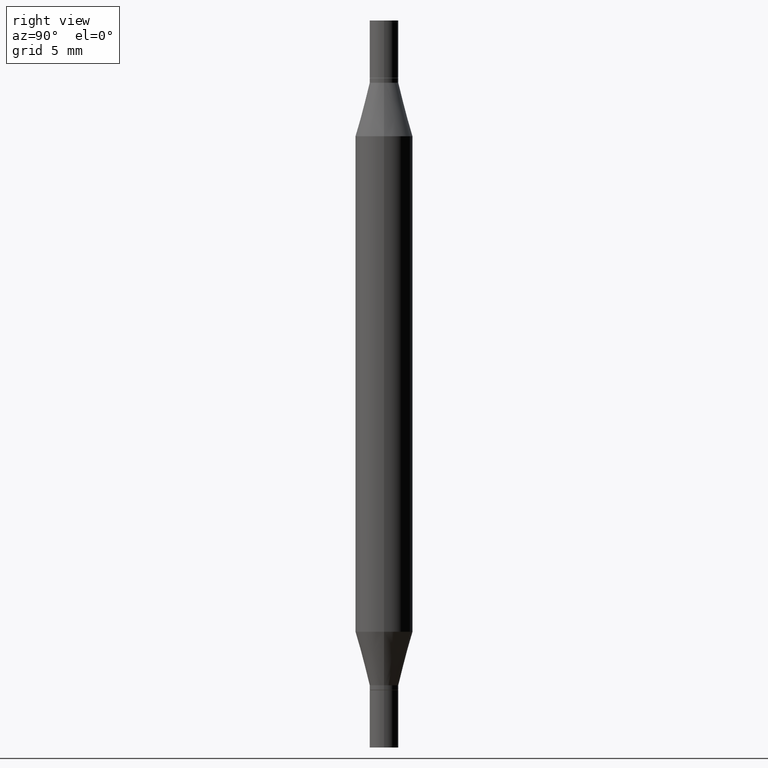
[diagram: clean part render]
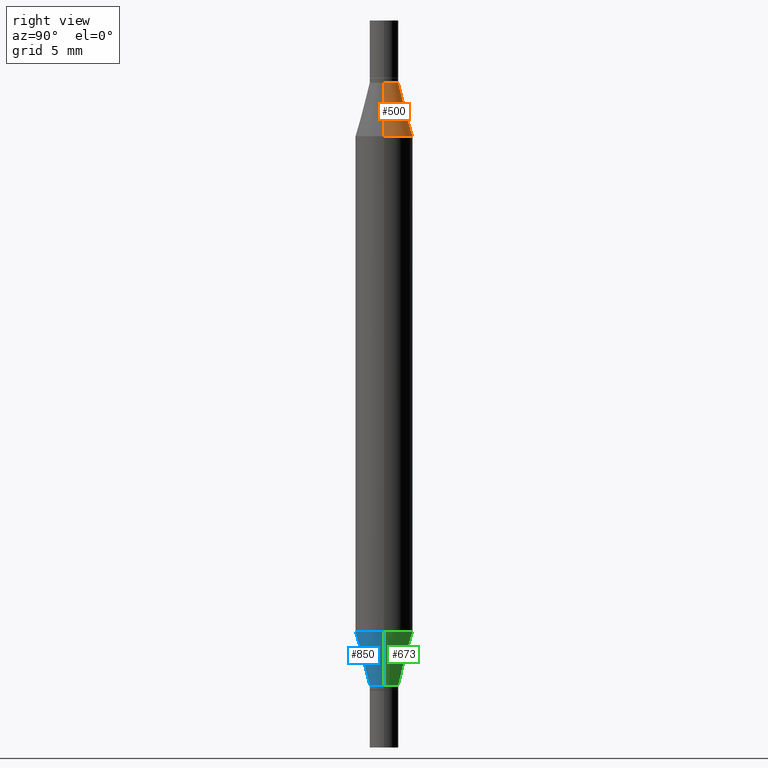
[diagram: same view with three faces highlighted in distinct colors, each labeled with its STEP entity id]
A machine part, right view with three faces highlighted in distinct colors.
Their STEP definitions:

[orange] entity #500 — the highlighted conical surface has half-angle 15 deg.
#31 = CARTESIAN_POINT ( 'NONE',  ( 0.05904999999999999832, -1.243484836231766624E-15, -0.2380954988232820146 ) ) ;
#44 = DIRECTION ( 'NONE',  ( -0.2588190451025213501, -1.597197180879714326E-15, -0.9659258262890682012 ) ) ;
#74 = DIRECTION ( 'NONE',  ( 2.445468806185136597E-29, 3.491805094961124077E-15, 1.000000000000000000 ) ) ;
#75 = VERTEX_POINT ( 'NONE', #653 ) ;
#97 = DIRECTION ( 'NONE',  ( 0.2588190451025213501, -5.180148453816008779E-15, -0.9659258262890682012 ) ) ;
#100 = CIRCLE ( 'NONE', #852, 0.02954999999999991661 ) ;
#165 = LINE ( 'NONE', #710, #436 ) ;
#171 = AXIS2_PLACEMENT_3D ( 'NONE', #889, #74, #353 ) ;
#172 = CARTESIAN_POINT ( 'NONE',  ( -0.02954999999999991661, -2.275696666105042854E-16, -0.1280000000000001137 ) ) ;
#191 = CONICAL_SURFACE ( 'NONE', #292, 0.02954999999999991661, 0.2617993877991500740 ) ;
#199 = EDGE_CURVE ( 'NONE', #772, #932, #734, .T. ) ;
#292 = AXIS2_PLACEMENT_3D ( 'NONE', #338, #715, #871 ) ;
#310 = VERTEX_POINT ( 'NONE', #172 ) ;
#335 = CARTESIAN_POINT ( 'NONE',  ( -0.02954999999999991661, -2.439811505568221169E-16, -0.1280000000000001137 ) ) ;
#338 = CARTESIAN_POINT ( 'NONE',  ( 3.345645873741884627E-29, -4.467088663909703532E-16, -0.1280000000000001137 ) ) ;
#353 = DIRECTION ( 'NONE',  ( 1.000000000000000000, -6.982962677686265133E-15, 0.000000000000000000 ) ) ;
#365 = EDGE_CURVE ( 'NONE', #75, #772, #165, .T. ) ;
#436 = VECTOR ( 'NONE', #97, 39.37007874015747433 ) ;
#480 = ORIENTED_EDGE ( 'NONE', *, *, #199, .T. ) ;
#500 = ADVANCED_FACE ( 'NONE', ( #942 ), #191, .T. ) ;
#563 = DIRECTION ( 'NONE',  ( 2.445468806185136597E-29, 3.491805094961124077E-15, 1.000000000000000000 ) ) ;
#590 = VECTOR ( 'NONE', #44, 39.37007874015747433 ) ;
#598 = ORIENTED_EDGE ( 'NONE', *, *, #365, .T. ) ;
#644 = ORIENTED_EDGE ( 'NONE', *, *, #925, .F. ) ;
#647 = CARTESIAN_POINT ( 'NONE',  ( -0.05904999999999999832, -4.260284833459836245E-16, -0.2380954988232820146 ) ) ;
#653 = CARTESIAN_POINT ( 'NONE',  ( 0.02954999999999991661, -6.530554135165988789E-16, -0.1280000000000001137 ) ) ;
#708 = CARTESIAN_POINT ( 'NONE',  ( 3.345645873741884627E-29, -4.467088663909703532E-16, -0.1280000000000001137 ) ) ;
#710 = CARTESIAN_POINT ( 'NONE',  ( 0.02954999999999991661, -6.530554135165988789E-16, -0.1280000000000001137 ) ) ;
#715 = DIRECTION ( 'NONE',  ( -2.445468806185136597E-29, -3.491805094961124077E-15, -1.000000000000000000 ) ) ;
#734 = CIRCLE ( 'NONE', #171, 0.05904999999999999832 ) ;
#772 = VERTEX_POINT ( 'NONE', #31 ) ;
#791 = EDGE_LOOP ( 'NONE', ( #644, #909, #598, #480 ) ) ;
#852 = AXIS2_PLACEMENT_3D ( 'NONE', #708, #563, #861 ) ;
#861 = DIRECTION ( 'NONE',  ( 1.000000000000000000, -6.982962677686265133E-15, 0.000000000000000000 ) ) ;
#865 = LINE ( 'NONE', #335, #590 ) ;
#871 = DIRECTION ( 'NONE',  ( 1.000000000000000000, -6.982962677686265133E-15, 0.000000000000000000 ) ) ;
#889 = CARTESIAN_POINT ( 'NONE',  ( 3.076410765668156654E-29, -8.311408901143919011E-16, -0.2380954988232820146 ) ) ;
#909 = ORIENTED_EDGE ( 'NONE', *, *, #910, .F. ) ;
#910 = EDGE_CURVE ( 'NONE', #75, #310, #100, .T. ) ;
#925 = EDGE_CURVE ( 'NONE', #310, #932, #865, .T. ) ;
#932 = VERTEX_POINT ( 'NONE', #647 ) ;
#942 = FACE_OUTER_BOUND ( 'NONE', #791, .T. ) ;

[blue] entity #850 — the highlighted conical surface has half-angle 15 deg.
#46 = VERTEX_POINT ( 'NONE', #794 ) ;
#51 = ORIENTED_EDGE ( 'NONE', *, *, #704, .T. ) ;
#80 = AXIS2_PLACEMENT_3D ( 'NONE', #82, #373, #645 ) ;
#82 = CARTESIAN_POINT ( 'NONE',  ( 3.076410765668156654E-29, -4.392299240039190746E-15, -1.258004501176717804 ) ) ;
#87 = CARTESIAN_POINT ( 'NONE',  ( 0.02954999999999991661, -4.983042166796936213E-15, -1.368099999999999872 ) ) ;
#92 = ORIENTED_EDGE ( 'NONE', *, *, #129, .F. ) ;
#109 = FACE_OUTER_BOUND ( 'NONE', #694, .T. ) ;
#129 = EDGE_CURVE ( 'NONE', #287, #46, #504, .T. ) ;
#177 = ORIENTED_EDGE ( 'NONE', *, *, #474, .F. ) ;
#210 = DIRECTION ( 'NONE',  ( -2.445468806185136597E-29, 3.491481338843145583E-15, 1.000000000000000000 ) ) ;
#287 = VERTEX_POINT ( 'NONE', #527 ) ;
#308 = EDGE_CURVE ( 'NONE', #601, #464, #617, .T. ) ;
#373 = DIRECTION ( 'NONE',  ( -2.445468806185136597E-29, 3.491481338843145583E-15, 1.000000000000000000 ) ) ;
#391 = CIRCLE ( 'NONE', #80, 0.05904999999999999832 ) ;
#447 = ORIENTED_EDGE ( 'NONE', *, *, #308, .T. ) ;
#464 = VERTEX_POINT ( 'NONE', #761 ) ;
#474 = EDGE_CURVE ( 'NONE', #46, #464, #391, .T. ) ;
#504 = LINE ( 'NONE', #806, #534 ) ;
#512 = DIRECTION ( 'NONE',  ( 1.000000000000000000, -6.982962677686281699E-15, 0.000000000000000000 ) ) ;
#527 = CARTESIAN_POINT ( 'NONE',  ( -0.02954999999999991661, -4.583140203546760956E-15, -1.368099999999999872 ) ) ;
#534 = VECTOR ( 'NONE', #716, 39.37007874015747433 ) ;
#550 = DIRECTION ( 'NONE',  ( 1.000000000000000000, -6.982962677686281699E-15, 0.000000000000000000 ) ) ;
#591 = CARTESIAN_POINT ( 'NONE',  ( 3.345645873741884627E-29, -4.776695619671307391E-15, -1.368099999999999872 ) ) ;
#601 = VERTEX_POINT ( 'NONE', #821 ) ;
#617 = LINE ( 'NONE', #87, #847 ) ;
#632 = DIRECTION ( 'NONE',  ( -2.445468806185136597E-29, 3.491481338843145583E-15, 1.000000000000000000 ) ) ;
#636 = AXIS2_PLACEMENT_3D ( 'NONE', #591, #210, #512 ) ;
#645 = DIRECTION ( 'NONE',  ( 1.000000000000000000, -6.982962677686273021E-15, 0.000000000000000000 ) ) ;
#694 = EDGE_LOOP ( 'NONE', ( #92, #51, #447, #177 ) ) ;
#704 = EDGE_CURVE ( 'NONE', #287, #601, #970, .T. ) ;
#716 = DIRECTION ( 'NONE',  ( -0.2588190451025213501, 5.211531920934551042E-15, 0.9659258262890682012 ) ) ;
#748 = AXIS2_PLACEMENT_3D ( 'NONE', #928, #632, #550 ) ;
#761 = CARTESIAN_POINT ( 'NONE',  ( 0.05904999999999999832, -4.804643186156564878E-15, -1.258004501176717804 ) ) ;
#794 = CARTESIAN_POINT ( 'NONE',  ( -0.05904999999999999832, -2.206690208753205272E-15, -1.258004501176717804 ) ) ;
#805 = CONICAL_SURFACE ( 'NONE', #748, 0.02954999999999991661, 0.2617993877991500740 ) ;
#806 = CARTESIAN_POINT ( 'NONE',  ( -0.02954999999999991661, -4.566730241254198034E-15, -1.368099999999999872 ) ) ;
#821 = CARTESIAN_POINT ( 'NONE',  ( 0.02954999999999991661, -4.983042166796936213E-15, -1.368099999999999872 ) ) ;
#847 = VECTOR ( 'NONE', #915, 39.37007874015747433 ) ;
#850 = ADVANCED_FACE ( 'NONE', ( #109 ), #805, .T. ) ;
#915 = DIRECTION ( 'NONE',  ( 0.2588190451025213501, 1.565188264969621968E-15, 0.9659258262890682012 ) ) ;
#928 = CARTESIAN_POINT ( 'NONE',  ( 3.345645873741884627E-29, -4.776695619671307391E-15, -1.368099999999999872 ) ) ;
#970 = CIRCLE ( 'NONE', #636, 0.02954999999999991661 ) ;

[green] entity #673 — the highlighted conical surface has half-angle 15 deg.
#43 = CARTESIAN_POINT ( 'NONE',  ( 3.076410765668156654E-29, -4.392299240039190746E-15, -1.258004501176717804 ) ) ;
#45 = EDGE_CURVE ( 'NONE', #464, #46, #835, .T. ) ;
#46 = VERTEX_POINT ( 'NONE', #794 ) ;
#87 = CARTESIAN_POINT ( 'NONE',  ( 0.02954999999999991661, -4.983042166796936213E-15, -1.368099999999999872 ) ) ;
#129 = EDGE_CURVE ( 'NONE', #287, #46, #504, .T. ) ;
#135 = CONICAL_SURFACE ( 'NONE', #684, 0.02954999999999991661, 0.2617993877991500740 ) ;
#137 = DIRECTION ( 'NONE',  ( 1.000000000000000000, -6.982962677686281699E-15, 0.000000000000000000 ) ) ;
#168 = ORIENTED_EDGE ( 'NONE', *, *, #45, .F. ) ;
#200 = DIRECTION ( 'NONE',  ( -2.445468806185136597E-29, 3.491481338843145583E-15, 1.000000000000000000 ) ) ;
#203 = AXIS2_PLACEMENT_3D ( 'NONE', #43, #799, #583 ) ;
#220 = CARTESIAN_POINT ( 'NONE',  ( 3.345645873741884627E-29, -4.776695619671307391E-15, -1.368099999999999872 ) ) ;
#223 = EDGE_CURVE ( 'NONE', #601, #287, #291, .T. ) ;
#287 = VERTEX_POINT ( 'NONE', #527 ) ;
#291 = CIRCLE ( 'NONE', #916, 0.02954999999999991661 ) ;
#308 = EDGE_CURVE ( 'NONE', #601, #464, #617, .T. ) ;
#464 = VERTEX_POINT ( 'NONE', #761 ) ;
#504 = LINE ( 'NONE', #806, #534 ) ;
#513 = DIRECTION ( 'NONE',  ( -2.445468806185136597E-29, 3.491481338843145583E-15, 1.000000000000000000 ) ) ;
#527 = CARTESIAN_POINT ( 'NONE',  ( -0.02954999999999991661, -4.583140203546760956E-15, -1.368099999999999872 ) ) ;
#534 = VECTOR ( 'NONE', #716, 39.37007874015747433 ) ;
#583 = DIRECTION ( 'NONE',  ( 1.000000000000000000, -6.982962677686273021E-15, 0.000000000000000000 ) ) ;
#586 = FACE_OUTER_BOUND ( 'NONE', #979, .T. ) ;
#601 = VERTEX_POINT ( 'NONE', #821 ) ;
#617 = LINE ( 'NONE', #87, #847 ) ;
#618 = ORIENTED_EDGE ( 'NONE', *, *, #129, .T. ) ;
#673 = ADVANCED_FACE ( 'NONE', ( #586 ), #135, .T. ) ;
#684 = AXIS2_PLACEMENT_3D ( 'NONE', #220, #200, #137 ) ;
#716 = DIRECTION ( 'NONE',  ( -0.2588190451025213501, 5.211531920934551042E-15, 0.9659258262890682012 ) ) ;
#761 = CARTESIAN_POINT ( 'NONE',  ( 0.05904999999999999832, -4.804643186156564878E-15, -1.258004501176717804 ) ) ;
#794 = CARTESIAN_POINT ( 'NONE',  ( -0.05904999999999999832, -2.206690208753205272E-15, -1.258004501176717804 ) ) ;
#799 = DIRECTION ( 'NONE',  ( -2.445468806185136597E-29, 3.491481338843145583E-15, 1.000000000000000000 ) ) ;
#806 = CARTESIAN_POINT ( 'NONE',  ( -0.02954999999999991661, -4.566730241254198034E-15, -1.368099999999999872 ) ) ;
#809 = CARTESIAN_POINT ( 'NONE',  ( 3.345645873741884627E-29, -4.776695619671307391E-15, -1.368099999999999872 ) ) ;
#821 = CARTESIAN_POINT ( 'NONE',  ( 0.02954999999999991661, -4.983042166796936213E-15, -1.368099999999999872 ) ) ;
#835 = CIRCLE ( 'NONE', #203, 0.05904999999999999832 ) ;
#847 = VECTOR ( 'NONE', #915, 39.37007874015747433 ) ;
#905 = ORIENTED_EDGE ( 'NONE', *, *, #308, .F. ) ;
#915 = DIRECTION ( 'NONE',  ( 0.2588190451025213501, 1.565188264969621968E-15, 0.9659258262890682012 ) ) ;
#916 = AXIS2_PLACEMENT_3D ( 'NONE', #809, #513, #978 ) ;
#947 = ORIENTED_EDGE ( 'NONE', *, *, #223, .T. ) ;
#978 = DIRECTION ( 'NONE',  ( 1.000000000000000000, -6.982962677686281699E-15, 0.000000000000000000 ) ) ;
#979 = EDGE_LOOP ( 'NONE', ( #947, #618, #168, #905 ) ) ;